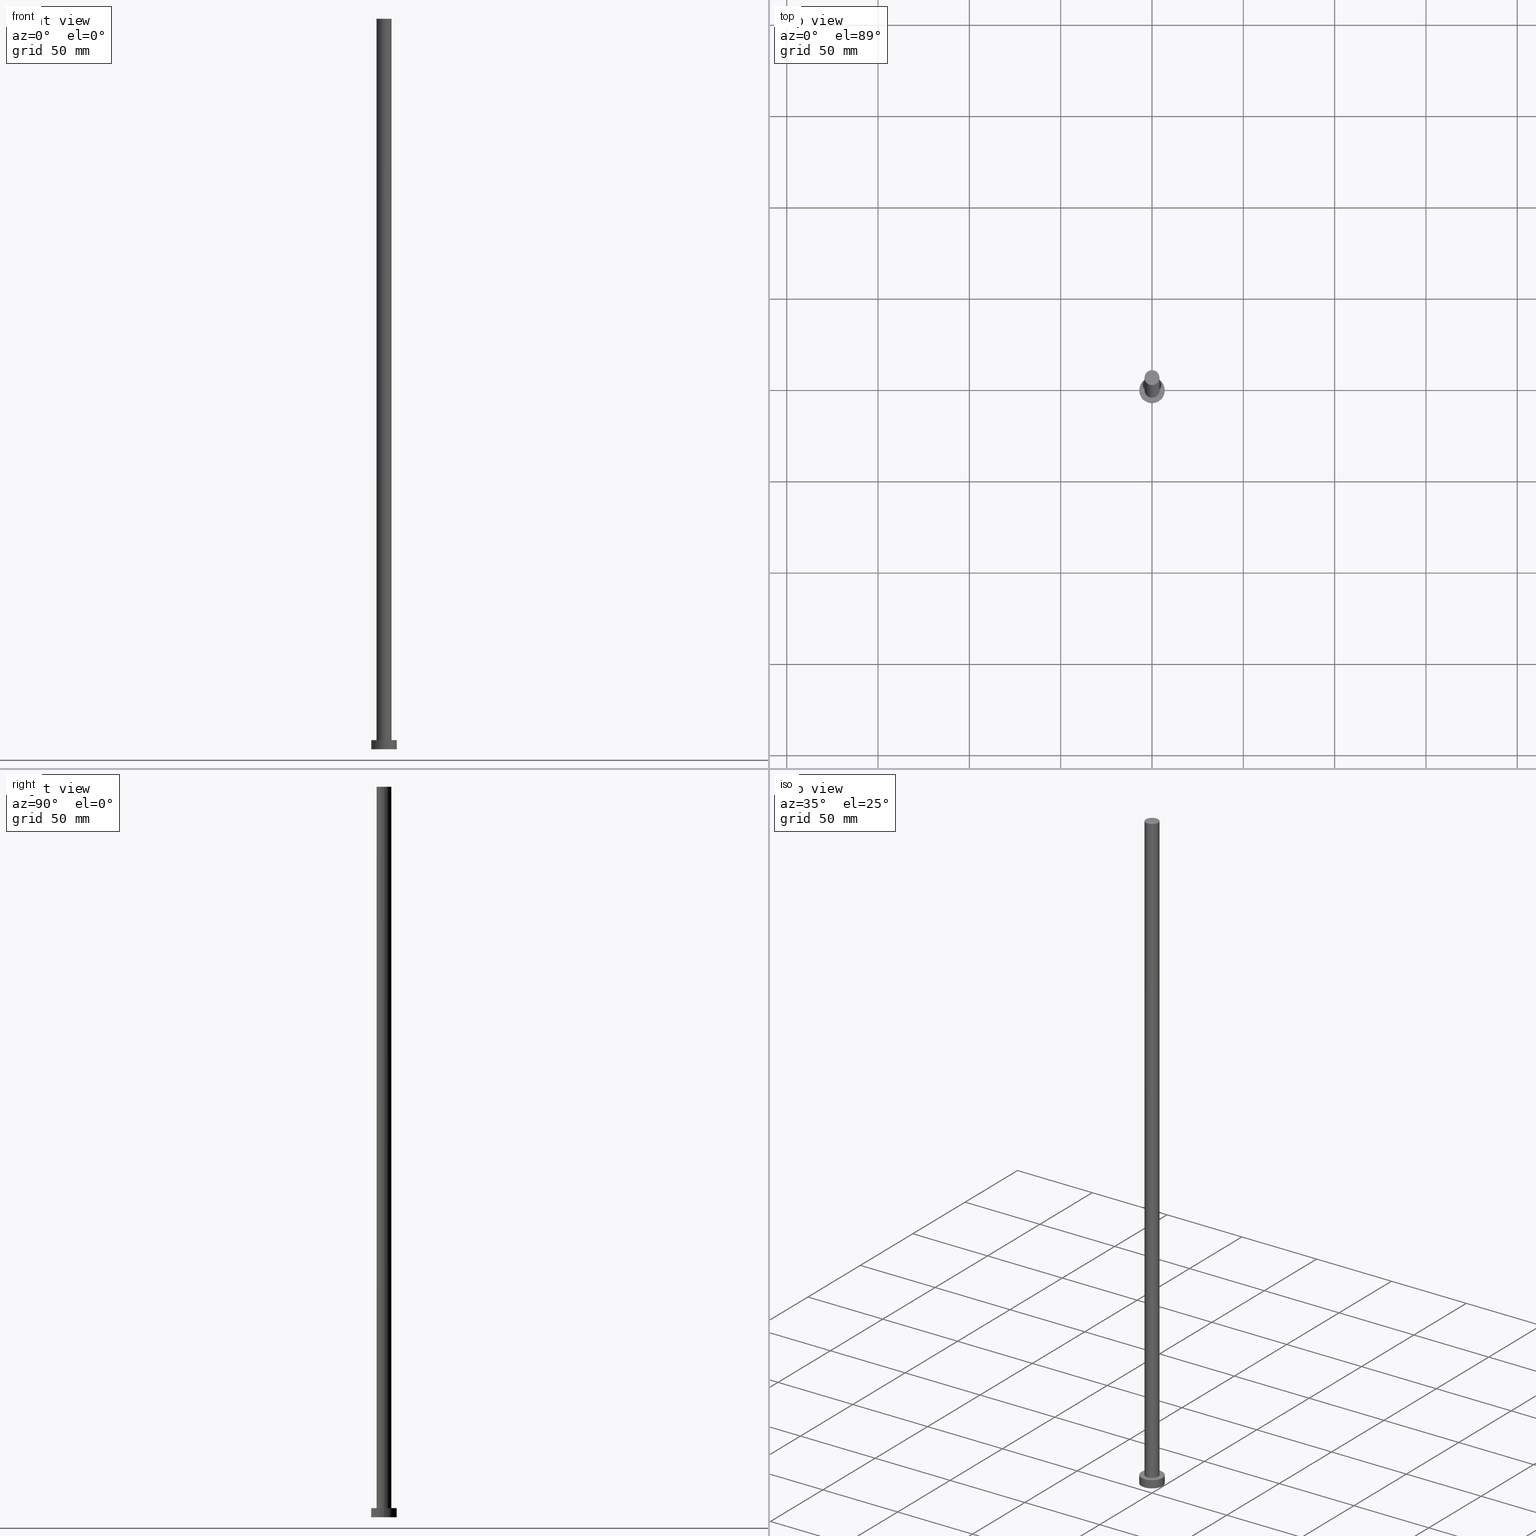
[diagram: canonical four-view strip — front | top / right | iso, engineering-drawing reading convention]
A machine part, canonical four-view strip (front | top / right | iso — engineering-drawing reading convention). The complete STEP part file that produces these views, byte-faithful:
ISO-10303-21;
HEADER;
FILE_DESCRIPTION (( 'STEP AP203' ),
    '1' );
FILE_NAME ('f60d.STEP',
    '2023-02-12T11:45:43',
    ( '' ),
    ( '' ),
    'SwSTEP 2.0',
    'SolidWorks 2019',
    '' );
FILE_SCHEMA (( 'CONFIG_CONTROL_DESIGN' ));
ENDSEC;

DATA;
#1 = ORIENTED_EDGE ( 'NONE', *, *, #222, .T. ) ;
#2 = CYLINDRICAL_SURFACE ( 'NONE', #101, 7.000000000000000000 ) ;
#3 = CIRCLE ( 'NONE', #148, 7.000000000000000000 ) ;
#4 = DIRECTION ( 'NONE',  ( -0.000000000000000000, -0.000000000000000000, -1.000000000000000000 ) ) ;
#5 = LOCAL_TIME ( 12, 45, 43.00000000000000000, #107 ) ;
#6 = APPLICATION_PROTOCOL_DEFINITION ( 'international standard', 'config_control_design', 1994, #16 ) ;
#7 = AXIS2_PLACEMENT_3D ( 'NONE', #21, #96, #159 ) ;
#8 = MANIFOLD_SOLID_BREP ( 'P�idat vysunut�m3', #226 ) ;
#9 = EDGE_CURVE ( 'NONE', #232, #41, #117, .T. ) ;
#10 = DIRECTION ( 'NONE',  ( -1.000000000000000000, 0.000000000000000000, 0.000000000000000000 ) ) ;
#11 = PERSON_AND_ORGANIZATION ( #249, #48 ) ;
#12 = ORIENTED_EDGE ( 'NONE', *, *, #145, .F. ) ;
#13 = APPROVAL_STATUS ( 'not_yet_approved' ) ;
#14 = EDGE_CURVE ( 'NONE', #41, #15, #3, .T. ) ;
#15 = VERTEX_POINT ( 'NONE', #255 ) ;
#16 = APPLICATION_CONTEXT ( 'configuration controlled 3d designs of mechanical parts and assemblies' ) ;
#17 = PERSON_AND_ORGANIZATION_ROLE ( 'design_supplier' ) ;
#18 = APPLICATION_PROTOCOL_DEFINITION ( 'international standard', 'config_control_design', 1994, #28 ) ;
#19 = VERTEX_POINT ( 'NONE', #26 ) ;
#20 = CIRCLE ( 'NONE', #129, 7.000000000000000000 ) ;
#21 = CARTESIAN_POINT ( 'NONE',  ( 0.000000000000000000, 0.000000000000000000, 5.000000000000000000 ) ) ;
#22 = EDGE_LOOP ( 'NONE', ( #87, #38 ) ) ;
#23 = ORIENTED_EDGE ( 'NONE', *, *, #235, .F. ) ;
#24 = CC_DESIGN_PERSON_AND_ORGANIZATION_ASSIGNMENT ( #68, #125, ( #113 ) ) ;
#25 = DIRECTION ( 'NONE',  ( -0.000000000000000000, -0.000000000000000000, -1.000000000000000000 ) ) ;
#26 = CARTESIAN_POINT ( 'NONE',  ( 4.099999999999999645, 5.021051876504146399E-16, 5.000000000000000000 ) ) ;
#27 = FACE_OUTER_BOUND ( 'NONE', #200, .T. ) ;
#28 = APPLICATION_CONTEXT ( 'configuration controlled 3d designs of mechanical parts and assemblies' ) ;
#29 = DIRECTION ( 'NONE',  ( 0.000000000000000000, 0.000000000000000000, 1.000000000000000000 ) ) ;
#30 = CARTESIAN_POINT ( 'NONE',  ( 0.000000000000000000, 0.000000000000000000, 400.0000000000000000 ) ) ;
#31 = ORIENTED_EDGE ( 'NONE', *, *, #118, .F. ) ;
#32 = AXIS2_PLACEMENT_3D ( 'NONE', #30, #84, #240 ) ;
#33 = APPROVAL_DATE_TIME ( #189, #73 ) ;
#34 = PERSON_AND_ORGANIZATION ( #249, #48 ) ;
#35 = ORIENTED_EDGE ( 'NONE', *, *, #163, .T. ) ;
#36 = DATE_AND_TIME ( #151, #5 ) ;
#37 = COORDINATED_UNIVERSAL_TIME_OFFSET ( 1, 0, .AHEAD. ) ;
#38 = ORIENTED_EDGE ( 'NONE', *, *, #196, .T. ) ;
#39 = FACE_BOUND ( 'NONE', #44, .T. ) ;
#40 = DIRECTION ( 'NONE',  ( 0.000000000000000000, 0.000000000000000000, 1.000000000000000000 ) ) ;
#41 = VERTEX_POINT ( 'NONE', #253 ) ;
#42 = FACE_OUTER_BOUND ( 'NONE', #195, .T. ) ;
#43 = VECTOR ( 'NONE', #221, 1000.000000000000000 ) ;
#44 = EDGE_LOOP ( 'NONE', ( #59, #201 ) ) ;
#45 = CC_DESIGN_PERSON_AND_ORGANIZATION_ASSIGNMENT ( #90, #153, ( #251 ) ) ;
#46 = DIRECTION ( 'NONE',  ( 1.000000000000000000, 0.000000000000000000, 0.000000000000000000 ) ) ;
#47 = CARTESIAN_POINT ( 'NONE',  ( 0.000000000000000000, 0.000000000000000000, 5.000000000000000000 ) ) ;
#48 = ORGANIZATION ( 'NEUR�EN�', 'NEUR�EN�', '' ) ;
#49 = CARTESIAN_POINT ( 'NONE',  ( 0.000000000000000000, 0.000000000000000000, 5.000000000000000000 ) ) ;
#50 = COORDINATED_UNIVERSAL_TIME_OFFSET ( 1, 0, .AHEAD. ) ;
#51 = PERSON_AND_ORGANIZATION_ROLE ( 'creator' ) ;
#52 = APPROVAL_STATUS ( 'not_yet_approved' ) ;
#53 = UNCERTAINTY_MEASURE_WITH_UNIT (LENGTH_MEASURE( 1.000000000000000082E-05 ), #78, 'distance_accuracy_value', 'NONE');
#54 = PRODUCT_DEFINITION ( 'NEZN�M�', '', #250, #111 ) ;
#55 = CIRCLE ( 'NONE', #248, 4.099999999999999645 ) ;
#56 = ORIENTED_EDGE ( 'NONE', *, *, #133, .T. ) ;
#57 = EDGE_LOOP ( 'NONE', ( #31, #12, #219, #56 ) ) ;
#58 = CARTESIAN_POINT ( 'NONE',  ( -4.099999999999999645, 0.000000000000000000, 400.0000000000000000 ) ) ;
#59 = ORIENTED_EDGE ( 'NONE', *, *, #133, .F. ) ;
#60 = FACE_OUTER_BOUND ( 'NONE', #192, .T. ) ;
#61 = CYLINDRICAL_SURFACE ( 'NONE', #95, 7.000000000000000000 ) ;
#62 = CC_DESIGN_DATE_AND_TIME_ASSIGNMENT ( #215, #64, ( #54 ) ) ;
#63 = DIRECTION ( 'NONE',  ( 1.000000000000000000, 0.000000000000000000, 0.000000000000000000 ) ) ;
#64 = DATE_TIME_ROLE ( 'creation_date' ) ;
#65 = AXIS2_PLACEMENT_3D ( 'NONE', #135, #116, #76 ) ;
#66 = PERSON_AND_ORGANIZATION ( #249, #48 ) ;
#67 = LOCAL_TIME ( 12, 45, 43.00000000000000000, #174 ) ;
#68 = PERSON_AND_ORGANIZATION ( #249, #48 ) ;
#69 = ORIENTED_EDGE ( 'NONE', *, *, #14, .T. ) ;
#70 = AXIS2_PLACEMENT_3D ( 'NONE', #237, #211, #63 ) ;
#71 = LOCAL_TIME ( 12, 45, 43.00000000000000000, #212 ) ;
#72 = CARTESIAN_POINT ( 'NONE',  ( 0.000000000000000000, 0.000000000000000000, 5.000000000000000000 ) ) ;
#73 = APPROVAL ( #52, 'NEUR�EN�' ) ;
#74 = DIRECTION ( 'NONE',  ( -0.000000000000000000, -0.000000000000000000, -1.000000000000000000 ) ) ;
#75 = CC_DESIGN_SECURITY_CLASSIFICATION ( #113, ( #250 ) ) ;
#76 = DIRECTION ( 'NONE',  ( 1.000000000000000000, 0.000000000000000000, -0.000000000000000000 ) ) ;
#77 = DIRECTION ( 'NONE',  ( -0.000000000000000000, -0.000000000000000000, -1.000000000000000000 ) ) ;
#78 =( LENGTH_UNIT ( ) NAMED_UNIT ( * ) SI_UNIT ( .MILLI., .METRE. ) );
#79 = APPROVAL_PERSON_ORGANIZATION ( #34, #73, #243 ) ;
#80 = MECHANICAL_CONTEXT ( 'NONE', #16, 'mechanical' ) ;
#81 = CYLINDRICAL_SURFACE ( 'NONE', #217, 4.099999999999999645 ) ;
#82 = AXIS2_PLACEMENT_3D ( 'NONE', #132, #100, #137 ) ;
#83 = DIRECTION ( 'NONE',  ( 0.000000000000000000, 0.000000000000000000, 1.000000000000000000 ) ) ;
#84 = DIRECTION ( 'NONE',  ( 0.000000000000000000, 0.000000000000000000, 1.000000000000000000 ) ) ;
#85 = EDGE_CURVE ( 'NONE', #19, #108, #202, .T. ) ;
#86 = CALENDAR_DATE ( 2023, 12, 2 ) ;
#87 = ORIENTED_EDGE ( 'NONE', *, *, #180, .T. ) ;
#88 = AXIS2_PLACEMENT_3D ( 'NONE', #228, #83, #168 ) ;
#89 = CALENDAR_DATE ( 2023, 12, 2 ) ;
#90 = PERSON_AND_ORGANIZATION ( #249, #48 ) ;
#91 = ADVANCED_FACE ( 'NONE', ( #39, #134 ), #203, .T. ) ;
#92 = CALENDAR_DATE ( 2023, 12, 2 ) ;
#93 = ORIENTED_EDGE ( 'NONE', *, *, #85, .T. ) ;
#94 = CALENDAR_DATE ( 2023, 12, 2 ) ;
#95 = AXIS2_PLACEMENT_3D ( 'NONE', #47, #4, #104 ) ;
#96 = DIRECTION ( 'NONE',  ( 0.000000000000000000, 0.000000000000000000, 1.000000000000000000 ) ) ;
#97 = VERTEX_POINT ( 'NONE', #178 ) ;
#98 = ORIENTED_EDGE ( 'NONE', *, *, #14, .F. ) ;
#99 = ADVANCED_FACE ( 'NONE', ( #42 ), #2, .T. ) ;
#100 = DIRECTION ( 'NONE',  ( 0.000000000000000000, 0.000000000000000000, 1.000000000000000000 ) ) ;
#101 = AXIS2_PLACEMENT_3D ( 'NONE', #72, #25, #115 ) ;
#102 = CIRCLE ( 'NONE', #204, 7.000000000000000000 ) ;
#103 = LINE ( 'NONE', #146, #244 ) ;
#104 = DIRECTION ( 'NONE',  ( -1.000000000000000000, 0.000000000000000000, 0.000000000000000000 ) ) ;
#105 = DIRECTION ( 'NONE',  ( 1.000000000000000000, 0.000000000000000000, 0.000000000000000000 ) ) ;
#106 = LOCAL_TIME ( 12, 45, 43.00000000000000000, #37 ) ;
#107 = COORDINATED_UNIVERSAL_TIME_OFFSET ( 1, 0, .AHEAD. ) ;
#108 = VERTEX_POINT ( 'NONE', #158 ) ;
#109 = ADVANCED_FACE ( 'NONE', ( #236 ), #181, .T. ) ;
#110 = VERTEX_POINT ( 'NONE', #58 ) ;
#111 = DESIGN_CONTEXT ( 'detailed design', #28, 'design' ) ;
#112 = PERSON_AND_ORGANIZATION ( #249, #48 ) ;
#113 = SECURITY_CLASSIFICATION ( '', '', #173 ) ;
#114 = CC_DESIGN_PERSON_AND_ORGANIZATION_ASSIGNMENT ( #191, #149, ( #250 ) ) ;
#115 = DIRECTION ( 'NONE',  ( -1.000000000000000000, 0.000000000000000000, 0.000000000000000000 ) ) ;
#116 = DIRECTION ( 'NONE',  ( 0.000000000000000000, 0.000000000000000000, 1.000000000000000000 ) ) ;
#117 = LINE ( 'NONE', #161, #127 ) ;
#118 = EDGE_CURVE ( 'NONE', #97, #19, #156, .T. ) ;
#119 = FACE_OUTER_BOUND ( 'NONE', #198, .T. ) ;
#120 = DIRECTION ( 'NONE',  ( -0.000000000000000000, -0.000000000000000000, -1.000000000000000000 ) ) ;
#121 = CARTESIAN_POINT ( 'NONE',  ( 0.000000000000000000, 0.000000000000000000, 0.000000000000000000 ) ) ;
#122 = CARTESIAN_POINT ( 'NONE',  ( 0.000000000000000000, 0.000000000000000000, 0.000000000000000000 ) ) ;
#123 = DIRECTION ( 'NONE',  ( 0.000000000000000000, 0.000000000000000000, 1.000000000000000000 ) ) ;
#124 = ADVANCED_FACE ( 'NONE', ( #119 ), #205, .F. ) ;
#125 = PERSON_AND_ORGANIZATION_ROLE ( 'classification_officer' ) ;
#126 = ORIENTED_EDGE ( 'NONE', *, *, #145, .T. ) ;
#127 = VECTOR ( 'NONE', #74, 1000.000000000000000 ) ;
#128 = APPROVAL_STATUS ( 'not_yet_approved' ) ;
#129 = AXIS2_PLACEMENT_3D ( 'NONE', #209, #123, #46 ) ;
#130 = SHAPE_DEFINITION_REPRESENTATION ( #175, #166 ) ;
#131 = ORIENTED_EDGE ( 'NONE', *, *, #118, .T. ) ;
#132 = CARTESIAN_POINT ( 'NONE',  ( 0.000000000000000000, 0.000000000000000000, 5.000000000000000000 ) ) ;
#133 = EDGE_CURVE ( 'NONE', #108, #19, #160, .T. ) ;
#134 = FACE_OUTER_BOUND ( 'NONE', #22, .T. ) ;
#135 = CARTESIAN_POINT ( 'NONE',  ( 0.000000000000000000, 0.000000000000000000, 0.000000000000000000 ) ) ;
#136 = CC_DESIGN_DATE_AND_TIME_ASSIGNMENT ( #36, #197, ( #113 ) ) ;
#137 = DIRECTION ( 'NONE',  ( 1.000000000000000000, 0.000000000000000000, 0.000000000000000000 ) ) ;
#138 = CARTESIAN_POINT ( 'NONE',  ( 4.099999999999999645, 5.021051876504146399E-16, 400.0000000000000000 ) ) ;
#139 = LINE ( 'NONE', #143, #199 ) ;
#140 = PLANE ( 'NONE',  #32 ) ;
#141 = APPROVAL ( #128, 'NEUR�EN�' ) ;
#142 = DIRECTION ( 'NONE',  ( -0.000000000000000000, -0.000000000000000000, -1.000000000000000000 ) ) ;
#143 = CARTESIAN_POINT ( 'NONE',  ( 7.000000000000000000, 8.572527594031473190E-16, 5.000000000000000000 ) ) ;
#144 = CC_DESIGN_APPROVAL ( #141, ( #113 ) ) ;
#145 = EDGE_CURVE ( 'NONE', #110, #97, #55, .T. ) ;
#146 = CARTESIAN_POINT ( 'NONE',  ( -4.099999999999999645, 0.000000000000000000, 400.0000000000000000 ) ) ;
#147 = PERSON_AND_ORGANIZATION ( #249, #48 ) ;
#148 = AXIS2_PLACEMENT_3D ( 'NONE', #238, #40, #182 ) ;
#149 = PERSON_AND_ORGANIZATION_ROLE ( 'creator' ) ;
#150 = APPROVAL_PERSON_ORGANIZATION ( #11, #141, #245 ) ;
#151 = CALENDAR_DATE ( 2023, 12, 2 ) ;
#152 = AXIS2_PLACEMENT_3D ( 'NONE', #179, #77, #254 ) ;
#153 = PERSON_AND_ORGANIZATION_ROLE ( 'design_owner' ) ;
#154 = ORIENTED_EDGE ( 'NONE', *, *, #157, .F. ) ;
#155 = ORIENTED_EDGE ( 'NONE', *, *, #163, .F. ) ;
#156 = LINE ( 'NONE', #138, #43 ) ;
#157 = EDGE_CURVE ( 'NONE', #110, #108, #103, .T. ) ;
#158 = CARTESIAN_POINT ( 'NONE',  ( -4.099999999999999645, 0.000000000000000000, 5.000000000000000000 ) ) ;
#159 = DIRECTION ( 'NONE',  ( 1.000000000000000000, 0.000000000000000000, -0.000000000000000000 ) ) ;
#160 = CIRCLE ( 'NONE', #70, 4.099999999999999645 ) ;
#161 = CARTESIAN_POINT ( 'NONE',  ( -7.000000000000000000, 0.000000000000000000, 5.000000000000000000 ) ) ;
#162 = DIRECTION ( 'NONE',  ( 0.000000000000000000, 0.000000000000000000, 1.000000000000000000 ) ) ;
#163 = EDGE_CURVE ( 'NONE', #97, #110, #208, .T. ) ;
#164 = CARTESIAN_POINT ( 'NONE',  ( 0.000000000000000000, 0.000000000000000000, 400.0000000000000000 ) ) ;
#165 =( NAMED_UNIT ( * ) PLANE_ANGLE_UNIT ( ) SI_UNIT ( $, .RADIAN. ) );
#166 = ADVANCED_BREP_SHAPE_REPRESENTATION ( 'f60d', ( #8, #177 ), #188 ) ;
#167 = CIRCLE ( 'NONE', #172, 7.000000000000000000 ) ;
#168 = DIRECTION ( 'NONE',  ( 1.000000000000000000, 0.000000000000000000, 0.000000000000000000 ) ) ;
#169 = PRODUCT_RELATED_PRODUCT_CATEGORY ( 'detail', '', ( #251 ) ) ;
#170 = ORIENTED_EDGE ( 'NONE', *, *, #235, .T. ) ;
#171 = DATE_AND_TIME ( #94, #71 ) ;
#172 = AXIS2_PLACEMENT_3D ( 'NONE', #49, #162, #105 ) ;
#173 = SECURITY_CLASSIFICATION_LEVEL ( 'unclassified' ) ;
#174 = COORDINATED_UNIVERSAL_TIME_OFFSET ( 1, 0, .AHEAD. ) ;
#175 = PRODUCT_DEFINITION_SHAPE ( 'NONE', 'NONE',  #54 ) ;
#176 = ORIENTED_EDGE ( 'NONE', *, *, #180, .F. ) ;
#177 = AXIS2_PLACEMENT_3D ( 'NONE', #122, #210, #186 ) ;
#178 = CARTESIAN_POINT ( 'NONE',  ( 4.099999999999999645, 5.021051876504146399E-16, 400.0000000000000000 ) ) ;
#179 = CARTESIAN_POINT ( 'NONE',  ( 0.000000000000000000, 0.000000000000000000, 400.0000000000000000 ) ) ;
#180 = EDGE_CURVE ( 'NONE', #232, #213, #167, .T. ) ;
#181 = CYLINDRICAL_SURFACE ( 'NONE', #152, 4.099999999999999645 ) ;
#182 = DIRECTION ( 'NONE',  ( 1.000000000000000000, 0.000000000000000000, 0.000000000000000000 ) ) ;
#183 = ORIENTED_EDGE ( 'NONE', *, *, #9, .F. ) ;
#184 = CARTESIAN_POINT ( 'NONE',  ( 0.000000000000000000, 0.000000000000000000, 400.0000000000000000 ) ) ;
#185 = DIRECTION ( 'NONE',  ( 0.000000000000000000, 0.000000000000000000, 1.000000000000000000 ) ) ;
#186 = DIRECTION ( 'NONE',  ( 1.000000000000000000, 0.000000000000000000, 0.000000000000000000 ) ) ;
#187 = DIRECTION ( 'NONE',  ( -0.000000000000000000, -0.000000000000000000, -1.000000000000000000 ) ) ;
#188 =( GEOMETRIC_REPRESENTATION_CONTEXT ( 3 ) GLOBAL_UNCERTAINTY_ASSIGNED_CONTEXT ( ( #53 ) ) GLOBAL_UNIT_ASSIGNED_CONTEXT ( ( #78, #165, #207 ) ) REPRESENTATION_CONTEXT ( 'NONE', 'WORKASPACE' ) );
#189 = DATE_AND_TIME ( #92, #230 ) ;
#190 = CC_DESIGN_PERSON_AND_ORGANIZATION_ASSIGNMENT ( #147, #17, ( #250 ) ) ;
#191 = PERSON_AND_ORGANIZATION ( #249, #48 ) ;
#192 = EDGE_LOOP ( 'NONE', ( #234, #170, #1, #183 ) ) ;
#193 = APPROVAL_ROLE ( '' ) ;
#194 = CC_DESIGN_APPROVAL ( #73, ( #250 ) ) ;
#195 = EDGE_LOOP ( 'NONE', ( #23, #176, #218, #69 ) ) ;
#196 = EDGE_CURVE ( 'NONE', #213, #232, #20, .T. ) ;
#197 = DATE_TIME_ROLE ( 'classification_date' ) ;
#198 = EDGE_LOOP ( 'NONE', ( #98, #220 ) ) ;
#199 = VECTOR ( 'NONE', #120, 1000.000000000000000 ) ;
#200 = EDGE_LOOP ( 'NONE', ( #126, #35 ) ) ;
#201 = ORIENTED_EDGE ( 'NONE', *, *, #85, .F. ) ;
#202 = CIRCLE ( 'NONE', #82, 4.099999999999999645 ) ;
#203 = PLANE ( 'NONE',  #7 ) ;
#204 = AXIS2_PLACEMENT_3D ( 'NONE', #121, #185, #227 ) ;
#205 = PLANE ( 'NONE',  #65 ) ;
#206 = ADVANCED_FACE ( 'NONE', ( #27 ), #140, .T. ) ;
#207 =( NAMED_UNIT ( * ) SI_UNIT ( $, .STERADIAN. ) SOLID_ANGLE_UNIT ( ) );
#208 = CIRCLE ( 'NONE', #88, 4.099999999999999645 ) ;
#209 = CARTESIAN_POINT ( 'NONE',  ( 0.000000000000000000, 0.000000000000000000, 5.000000000000000000 ) ) ;
#210 = DIRECTION ( 'NONE',  ( 0.000000000000000000, 0.000000000000000000, 1.000000000000000000 ) ) ;
#211 = DIRECTION ( 'NONE',  ( 0.000000000000000000, 0.000000000000000000, 1.000000000000000000 ) ) ;
#212 = COORDINATED_UNIVERSAL_TIME_OFFSET ( 1, 0, .AHEAD. ) ;
#213 = VERTEX_POINT ( 'NONE', #225 ) ;
#214 = CC_DESIGN_PERSON_AND_ORGANIZATION_ASSIGNMENT ( #66, #51, ( #54 ) ) ;
#215 = DATE_AND_TIME ( #89, #106 ) ;
#216 = ADVANCED_FACE ( 'NONE', ( #224 ), #81, .T. ) ;
#217 = AXIS2_PLACEMENT_3D ( 'NONE', #164, #187, #10 ) ;
#218 = ORIENTED_EDGE ( 'NONE', *, *, #9, .T. ) ;
#219 = ORIENTED_EDGE ( 'NONE', *, *, #157, .T. ) ;
#220 = ORIENTED_EDGE ( 'NONE', *, *, #222, .F. ) ;
#221 = DIRECTION ( 'NONE',  ( -0.000000000000000000, -0.000000000000000000, -1.000000000000000000 ) ) ;
#222 = EDGE_CURVE ( 'NONE', #15, #41, #102, .T. ) ;
#223 = CC_DESIGN_APPROVAL ( #252, ( #54 ) ) ;
#224 = FACE_OUTER_BOUND ( 'NONE', #57, .T. ) ;
#225 = CARTESIAN_POINT ( 'NONE',  ( 7.000000000000000000, 8.572527594031473190E-16, 5.000000000000000000 ) ) ;
#226 = CLOSED_SHELL ( 'NONE', ( #109, #229, #99, #91, #124, #216, #206 ) ) ;
#227 = DIRECTION ( 'NONE',  ( 1.000000000000000000, 0.000000000000000000, 0.000000000000000000 ) ) ;
#228 = CARTESIAN_POINT ( 'NONE',  ( 0.000000000000000000, 0.000000000000000000, 400.0000000000000000 ) ) ;
#229 = ADVANCED_FACE ( 'NONE', ( #60 ), #61, .T. ) ;
#230 = LOCAL_TIME ( 12, 45, 43.00000000000000000, #50 ) ;
#231 = APPROVAL_DATE_TIME ( #233, #141 ) ;
#232 = VERTEX_POINT ( 'NONE', #242 ) ;
#233 = DATE_AND_TIME ( #86, #67 ) ;
#234 = ORIENTED_EDGE ( 'NONE', *, *, #196, .F. ) ;
#235 = EDGE_CURVE ( 'NONE', #213, #15, #139, .T. ) ;
#236 = FACE_OUTER_BOUND ( 'NONE', #247, .T. ) ;
#237 = CARTESIAN_POINT ( 'NONE',  ( 0.000000000000000000, 0.000000000000000000, 5.000000000000000000 ) ) ;
#238 = CARTESIAN_POINT ( 'NONE',  ( 0.000000000000000000, 0.000000000000000000, 0.000000000000000000 ) ) ;
#239 = APPROVAL_PERSON_ORGANIZATION ( #112, #252, #193 ) ;
#240 = DIRECTION ( 'NONE',  ( 1.000000000000000000, 0.000000000000000000, -0.000000000000000000 ) ) ;
#241 = DIRECTION ( 'NONE',  ( 1.000000000000000000, 0.000000000000000000, 0.000000000000000000 ) ) ;
#242 = CARTESIAN_POINT ( 'NONE',  ( -7.000000000000000000, 0.000000000000000000, 5.000000000000000000 ) ) ;
#243 = APPROVAL_ROLE ( '' ) ;
#244 = VECTOR ( 'NONE', #142, 1000.000000000000000 ) ;
#245 = APPROVAL_ROLE ( '' ) ;
#246 = APPROVAL_DATE_TIME ( #171, #252 ) ;
#247 = EDGE_LOOP ( 'NONE', ( #155, #131, #93, #154 ) ) ;
#248 = AXIS2_PLACEMENT_3D ( 'NONE', #184, #29, #241 ) ;
#249 = PERSON ( 'NEUR�EN�', 'NEUR�EN�', 'NEUR�EN�', ('NEUR�EN�'), ('NEUR�EN�'), ('NEUR�EN�') ) ;
#250 = PRODUCT_DEFINITION_FORMATION_WITH_SPECIFIED_SOURCE ( 'LIBOVOLN�', '', #251, .NOT_KNOWN. ) ;
#251 = PRODUCT ( 'f60d', 'f60d', '', ( #80 ) ) ;
#252 = APPROVAL ( #13, 'NEUR�EN�' ) ;
#253 = CARTESIAN_POINT ( 'NONE',  ( -7.000000000000000000, 0.000000000000000000, 0.000000000000000000 ) ) ;
#254 = DIRECTION ( 'NONE',  ( -1.000000000000000000, 0.000000000000000000, 0.000000000000000000 ) ) ;
#255 = CARTESIAN_POINT ( 'NONE',  ( 7.000000000000000000, 8.572527594031473190E-16, 0.000000000000000000 ) ) ;
ENDSEC;
END-ISO-10303-21;
